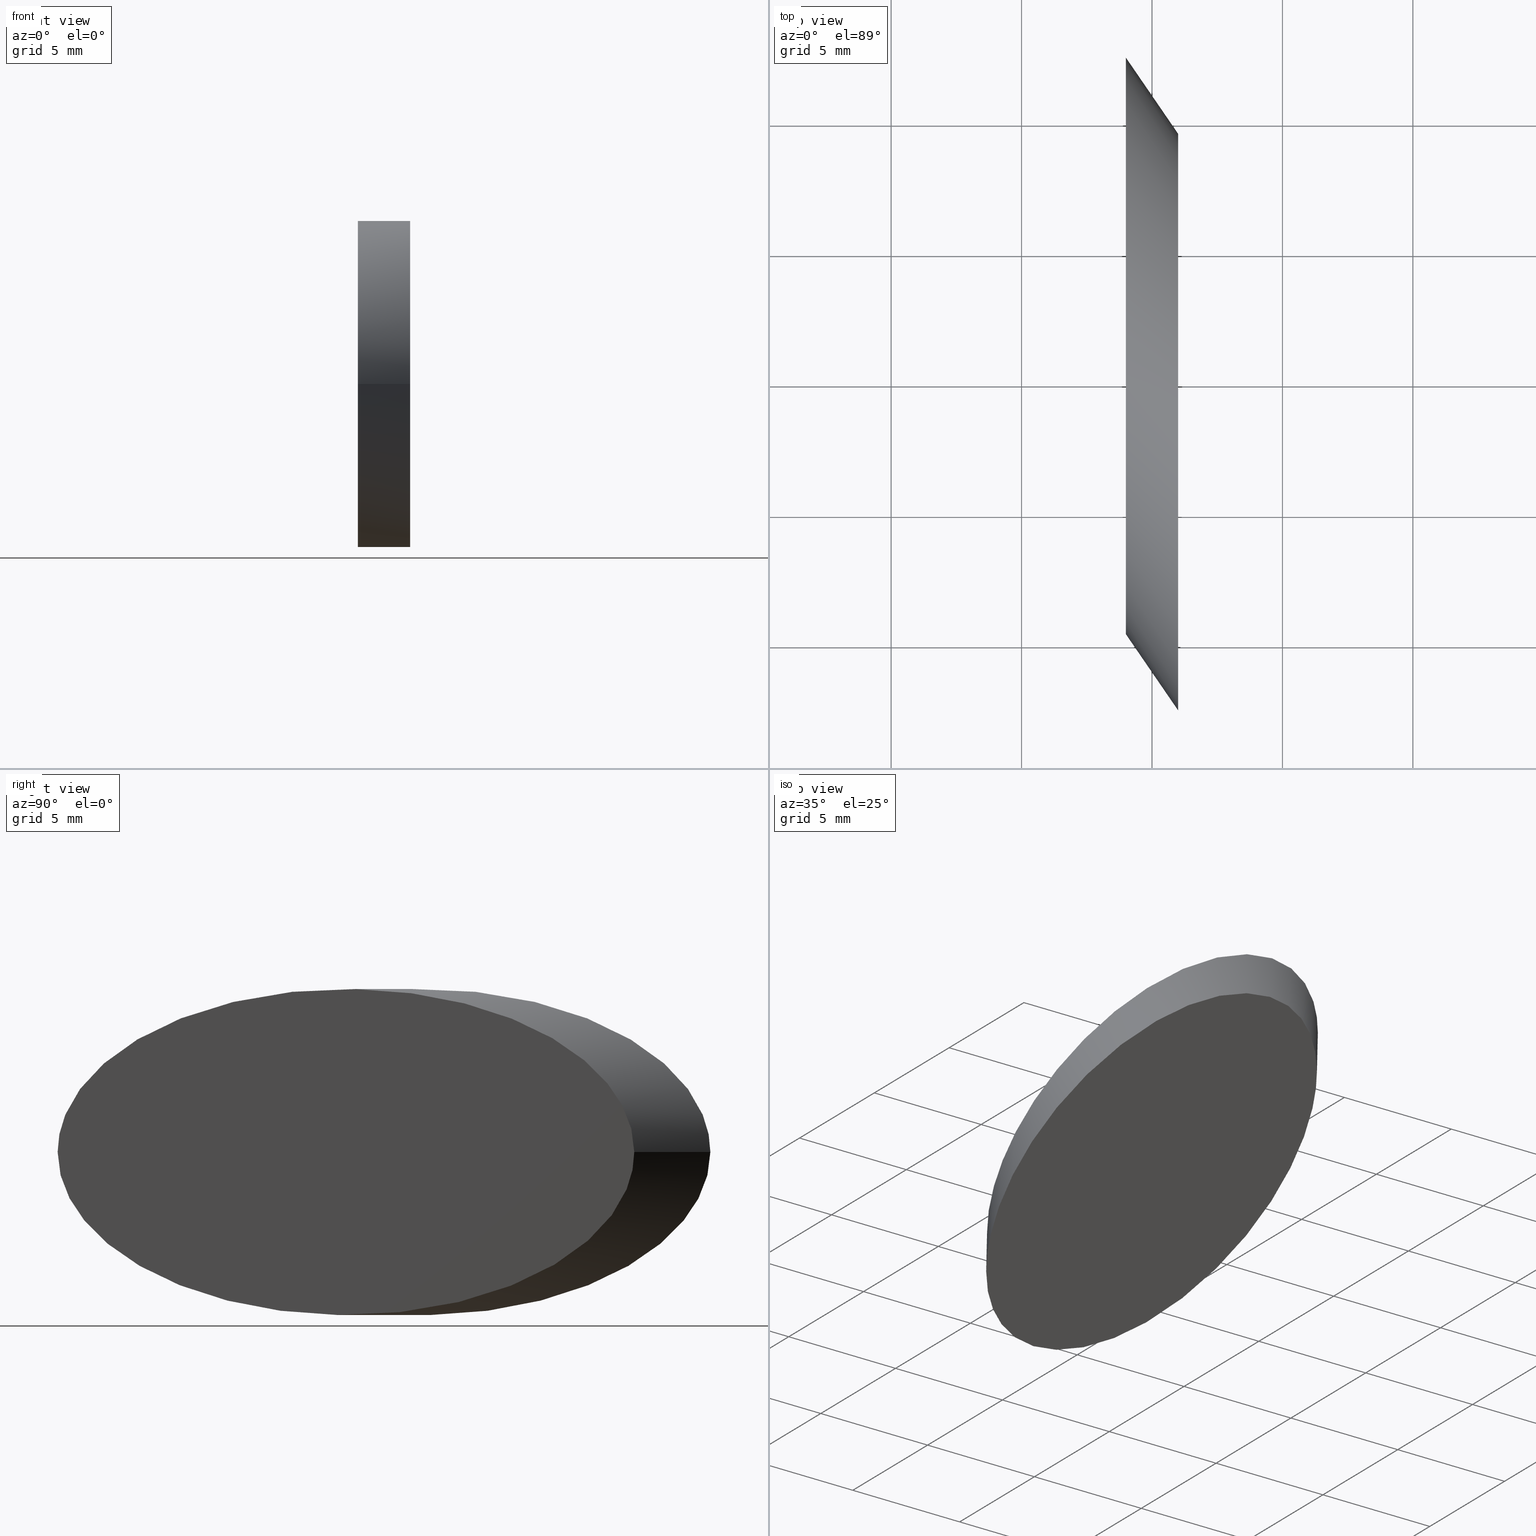
[diagram: canonical four-view strip — front | top / right | iso, engineering-drawing reading convention]
A machine part, canonical four-view strip (front | top / right | iso — engineering-drawing reading convention). The complete STEP part file that produces these views, byte-faithful:
ISO-10303-21;
HEADER;
FILE_DESCRIPTION (( 'STEP AP203' ),
    '1' );
FILE_NAME ('Web Model 65824.STEP',
    '2017-01-31T19:19:03',
    ( '' ),
    ( '' ),
    'SwSTEP 2.0',
    'SolidWorks 2016',
    '' );
FILE_SCHEMA (( 'CONFIG_CONTROL_DESIGN' ));
ENDSEC;

DATA;
#1 = LOCAL_TIME ( 14, 19, 3.000000000000000000, #88 ) ;
#2 = PERSON_AND_ORGANIZATION ( #24, #112 ) ;
#3 = CC_DESIGN_PERSON_AND_ORGANIZATION_ASSIGNMENT ( #100, #40, ( #38 ) ) ;
#4 = CARTESIAN_POINT ( 'NONE',  ( -0.9999999999999991100, 12.51184537694692600, -6.250000000000000000 ) ) ;
#5 = ORIENTED_EDGE ( 'NONE', *, *, #69, .T. ) ;
#6 = CARTESIAN_POINT ( 'NONE',  ( -1.000000000000004400, -9.594561307427634100, 0.0000000000000000000 ) ) ;
#7 = AXIS2_PLACEMENT_3D ( 'NONE', #52, #93, #16 ) ;
#8 = PERSON_AND_ORGANIZATION_ROLE ( 'creator' ) ;
#9 = APPROVAL_STATUS ( 'not_yet_approved' ) ;
#10 = AXIS2_PLACEMENT_3D ( 'NONE', #80, #146, #136 ) ;
#11 = SECURITY_CLASSIFICATION_LEVEL ( 'unclassified' ) ;
#12 = ADVANCED_FACE ( 'NONE', ( #172 ), #92, .T. ) ;
#13 = ADVANCED_BREP_SHAPE_REPRESENTATION ( 'Web Model 65824', ( #101, #10 ), #153 ) ;
#14 = ORIENTED_EDGE ( 'NONE', *, *, #41, .T. ) ;
#15 = EDGE_LOOP ( 'NONE', ( #119, #165 ) ) ;
#16 = DIRECTION ( 'NONE',  ( -0.8247846741814953700, -0.5654469393633009300, 0.0000000000000000000 ) ) ;
#17 = VERTEX_POINT ( 'NONE', #72 ) ;
#18 = CARTESIAN_POINT ( 'NONE',  ( 1.000000000000007800, -12.51184537694693300, 0.0000000000000000000 ) ) ;
#19 = APPROVAL_DATE_TIME ( #138, #45 ) ;
#20 = CARTESIAN_POINT ( 'NONE',  ( -1.000000000000004400, 12.51184537694691900, 7.654042494670957600E-016 ) ) ;
#21 = PERSON_AND_ORGANIZATION ( #24, #112 ) ;
#22 = CARTESIAN_POINT ( 'NONE',  ( -1.000000000000004400, 12.51184537694692300, -12.50000000000000000 ) ) ;
#23 =( NAMED_UNIT ( * ) SI_UNIT ( $, .STERADIAN. ) SOLID_ANGLE_UNIT ( ) );
#24 = PERSON ( 'UNSPECIFIED', 'UNSPECIFIED', 'UNSPECIFIED', ('UNSPECIFIED'), ('UNSPECIFIED'), ('UNSPECIFIED') ) ;
#25 = CC_DESIGN_DATE_AND_TIME_ASSIGNMENT ( #102, #97, ( #38 ) ) ;
#26 = LOCAL_TIME ( 14, 19, 3.000000000000000000, #108 ) ;
#27 = ORIENTED_EDGE ( 'NONE', *, *, #64, .T. ) ;
#28 = CARTESIAN_POINT ( 'NONE',  ( 0.9999999999999967800, 9.594561307427650100, -6.250000000000000000 ) ) ;
#29 = CARTESIAN_POINT ( 'NONE',  ( -1.000000000000004400, -9.594561307427637700, 12.50000000000000000 ) ) ;
#30 = CARTESIAN_POINT ( 'NONE',  ( 1.000000000000004400, 9.594561307427639500, 7.654042494670957600E-016 ) ) ;
#31 = CC_DESIGN_PERSON_AND_ORGANIZATION_ASSIGNMENT ( #127, #86, ( #83 ) ) ;
#32 = APPROVAL_PERSON_ORGANIZATION ( #73, #140, #147 ) ;
#33 = AXIS2_PLACEMENT_3D ( 'NONE', #4, #65, #115 ) ;
#34 = FACE_OUTER_BOUND ( 'NONE', #85, .T. ) ;
#35 = PRODUCT_DEFINITION ( 'UNKNOWN', '', #104, #167 ) ;
#36 = DIRECTION ( 'NONE',  ( 1.000000000000000000, 1.863698752252225800E-016, 0.0000000000000000000 ) ) ;
#37 = CARTESIAN_POINT ( 'NONE',  ( 1.000000000000002400, 9.594561307427635900, 12.50000000000000000 ) ) ;
#38 = SECURITY_CLASSIFICATION ( '', '', #11 ) ;
#39 = APPROVAL_STATUS ( 'not_yet_approved' ) ;
#40 = PERSON_AND_ORGANIZATION_ROLE ( 'classification_officer' ) ;
#41 = EDGE_CURVE ( 'NONE', #17, #74, #95, .T. ) ;
#42 = CLOSED_SHELL ( 'NONE', ( #103, #43, #47, #12 ) ) ;
#43 = ADVANCED_FACE ( 'NONE', ( #55 ), #48, .T. ) ;
#44 = ORIENTED_EDGE ( 'NONE', *, *, #81, .F. ) ;
#45 = APPROVAL ( #39, 'UNSPECIFIED' ) ;
#46 = PRODUCT_DEFINITION_SHAPE ( 'NONE', 'NONE',  #35 ) ;
#47 = ADVANCED_FACE ( 'NONE', ( #78 ), #171, .T. ) ;
#48 = CYLINDRICAL_SURFACE ( 'NONE', #7, 6.250000000000001800 ) ;
#49 = APPROVAL_DATE_TIME ( #62, #140 ) ;
#50 = CARTESIAN_POINT ( 'NONE',  ( -1.000000000000004400, -9.594561307427632400, -12.50000000000000000 ) ) ;
#51 = ORIENTED_EDGE ( 'NONE', *, *, #126, .F. ) ;
#52 = CARTESIAN_POINT ( 'NONE',  ( 28.27234696816502400, -41.23923370907478200, 0.0000000000000000000 ) ) ;
#53 = SHAPE_DEFINITION_REPRESENTATION ( #46, #13 ) ;
#54 = DIRECTION ( 'NONE',  ( -0.5654469393633004800, 0.8247846741814957000, -0.0000000000000000000 ) ) ;
#55 = FACE_OUTER_BOUND ( 'NONE', #175, .T. ) ;
#56 = MECHANICAL_CONTEXT ( 'NONE', #99, 'mechanical' ) ;
#57 = CALENDAR_DATE ( 2017, 31, 1 ) ;
#58 = PERSON_AND_ORGANIZATION_ROLE ( 'creator' ) ;
#59 = APPLICATION_PROTOCOL_DEFINITION ( 'international standard', 'config_control_design', 1994, #87 ) ;
#60 = CC_DESIGN_APPROVAL ( #45, ( #35 ) ) ;
#61 = VERTEX_POINT ( 'NONE', #18 ) ;
#62 = DATE_AND_TIME ( #89, #91 ) ;
#63 = PERSON_AND_ORGANIZATION ( #24, #112 ) ;
#64 = EDGE_CURVE ( 'NONE', #61, #137, #123, .T. ) ;
#65 = DIRECTION ( 'NONE',  ( -1.000000000000000000, 0.0000000000000000000, -0.0000000000000000000 ) ) ;
#66 = CC_DESIGN_DATE_AND_TIME_ASSIGNMENT ( #151, #174, ( #35 ) ) ;
#67 = DATE_AND_TIME ( #125, #163 ) ;
#68 = CARTESIAN_POINT ( 'NONE',  ( 1.000000000000006200, -12.51184537694692800, -12.50000000000000000 ) ) ;
#69 = EDGE_CURVE ( 'NONE', #137, #74, #90, .T. ) ;
#70 = APPROVAL_PERSON_ORGANIZATION ( #105, #45, #162 ) ;
#71 =( BOUNDED_CURVE ( )  B_SPLINE_CURVE ( 3, ( #155, #68, #145, #96 ),
 .UNSPECIFIED., .F., .F. ) 
 B_SPLINE_CURVE_WITH_KNOTS ( ( 4, 4 ),
 ( 3.141592653589793100, 6.283185307179586200 ),
 .UNSPECIFIED. ) 
 CURVE ( )  GEOMETRIC_REPRESENTATION_ITEM ( )  RATIONAL_B_SPLINE_CURVE ( ( 1.000000000000000000, 0.3333333333333333700, 0.3333333333333333700, 1.000000000000000000 ) ) 
 REPRESENTATION_ITEM ( '' )  );
#72 = CARTESIAN_POINT ( 'NONE',  ( 1.000000000000004400, 9.594561307427639500, 7.654042494670957600E-016 ) ) ;
#73 = PERSON_AND_ORGANIZATION ( #24, #112 ) ;
#74 = VERTEX_POINT ( 'NONE', #20 ) ;
#75 = CALENDAR_DATE ( 2017, 31, 1 ) ;
#76 = EDGE_CURVE ( 'NONE', #74, #137, #122, .T. ) ;
#77 =( NAMED_UNIT ( * ) PLANE_ANGLE_UNIT ( ) SI_UNIT ( $, .RADIAN. ) );
#78 = FACE_OUTER_BOUND ( 'NONE', #15, .T. ) ;
#79 = APPROVAL ( #160, 'UNSPECIFIED' ) ;
#80 = CARTESIAN_POINT ( 'NONE',  ( 0.0000000000000000000, 0.0000000000000000000, 0.0000000000000000000 ) ) ;
#81 = EDGE_CURVE ( 'NONE', #17, #61, #107, .T. ) ;
#82 = CARTESIAN_POINT ( 'NONE',  ( 28.27234696816502400, -41.23923370907478200, 0.0000000000000000000 ) ) ;
#83 = PRODUCT ( 'Web Model 65824', 'Web Model 65824', '', ( #56 ) ) ;
#84 = DIRECTION ( 'NONE',  ( -0.8247846741814953700, -0.5654469393633009300, 0.0000000000000000000 ) ) ;
#85 = EDGE_LOOP ( 'NONE', ( #44, #14, #130, #173 ) ) ;
#86 = PERSON_AND_ORGANIZATION_ROLE ( 'design_owner' ) ;
#87 = APPLICATION_CONTEXT ( 'configuration controlled 3d designs of mechanical parts and assemblies' ) ;
#88 = COORDINATED_UNIVERSAL_TIME_OFFSET ( 5, 0, .BEHIND. ) ;
#89 = CALENDAR_DATE ( 2017, 31, 1 ) ;
#90 =( BOUNDED_CURVE ( )  B_SPLINE_CURVE ( 3, ( #169, #29, #143, #113 ),
 .UNSPECIFIED., .F., .F. ) 
 B_SPLINE_CURVE_WITH_KNOTS ( ( 4, 4 ),
 ( 3.141592653589793100, 6.283185307179586200 ),
 .UNSPECIFIED. ) 
 CURVE ( )  GEOMETRIC_REPRESENTATION_ITEM ( )  RATIONAL_B_SPLINE_CURVE ( ( 1.000000000000000000, 0.3333333333333333700, 0.3333333333333333700, 1.000000000000000000 ) ) 
 REPRESENTATION_ITEM ( '' )  );
#91 = LOCAL_TIME ( 14, 19, 3.000000000000000000, #154 ) ;
#92 = PLANE ( 'NONE',  #33 ) ;
#93 = DIRECTION ( 'NONE',  ( -0.5654469393633004800, 0.8247846741814957000, -0.0000000000000000000 ) ) ;
#94 = CARTESIAN_POINT ( 'NONE',  ( 23.11744275453067500, -44.77327708009541900, 0.0000000000000000000 ) ) ;
#95 = LINE ( 'NONE', #111, #170 ) ;
#96 = CARTESIAN_POINT ( 'NONE',  ( 1.000000000000004400, 9.594561307427639500, 7.654042494670957600E-016 ) ) ;
#97 = DATE_TIME_ROLE ( 'classification_date' ) ;
#98 = AXIS2_PLACEMENT_3D ( 'NONE', #82, #54, #84 ) ;
#99 = APPLICATION_CONTEXT ( 'configuration controlled 3d designs of mechanical parts and assemblies' ) ;
#100 = PERSON_AND_ORGANIZATION ( #24, #112 ) ;
#101 = MANIFOLD_SOLID_BREP ( 'Cut-Extrude1', #42 ) ;
#102 = DATE_AND_TIME ( #117, #26 ) ;
#103 = ADVANCED_FACE ( 'NONE', ( #34 ), #106, .T. ) ;
#104 = PRODUCT_DEFINITION_FORMATION_WITH_SPECIFIED_SOURCE ( 'ANY', '', #83, .NOT_KNOWN. ) ;
#105 = PERSON_AND_ORGANIZATION ( #24, #112 ) ;
#106 = CYLINDRICAL_SURFACE ( 'NONE', #98, 6.250000000000001800 ) ;
#107 =( BOUNDED_CURVE ( )  B_SPLINE_CURVE ( 3, ( #30, #37, #158, #157 ),
 .UNSPECIFIED., .F., .T. ) 
 B_SPLINE_CURVE_WITH_KNOTS ( ( 4, 4 ),
 ( 1.224646799147353000E-016, 3.141592653589793100 ),
 .UNSPECIFIED. ) 
 CURVE ( )  GEOMETRIC_REPRESENTATION_ITEM ( )  RATIONAL_B_SPLINE_CURVE ( ( 1.000000000000000000, 0.3333333333333333700, 0.3333333333333333700, 1.000000000000000000 ) ) 
 REPRESENTATION_ITEM ( '' )  );
#108 = COORDINATED_UNIVERSAL_TIME_OFFSET ( 5, 0, .BEHIND. ) ;
#109 = VECTOR ( 'NONE', #144, 1000.000000000000000 ) ;
#110 = LOCAL_TIME ( 14, 19, 3.000000000000000000, #121 ) ;
#111 = CARTESIAN_POINT ( 'NONE',  ( 33.42725118179937000, -37.70519033805415200, 7.654042494670957600E-016 ) ) ;
#112 = ORGANIZATION ( 'UNSPECIFIED', 'UNSPECIFIED', '' ) ;
#113 = CARTESIAN_POINT ( 'NONE',  ( -1.000000000000004400, 12.51184537694691900, 7.654042494670957600E-016 ) ) ;
#114 = APPROVAL_DATE_TIME ( #67, #79 ) ;
#115 = DIRECTION ( 'NONE',  ( -0.0000000000000000000, 0.0000000000000000000, 1.000000000000000000 ) ) ;
#116 = APPLICATION_PROTOCOL_DEFINITION ( 'international standard', 'config_control_design', 1994, #99 ) ;
#117 = CALENDAR_DATE ( 2017, 31, 1 ) ;
#118 = APPROVAL_ROLE ( '' ) ;
#119 = ORIENTED_EDGE ( 'NONE', *, *, #126, .T. ) ;
#120 = CC_DESIGN_SECURITY_CLASSIFICATION ( #38, ( #104 ) ) ;
#121 = COORDINATED_UNIVERSAL_TIME_OFFSET ( 5, 0, .BEHIND. ) ;
#122 =( BOUNDED_CURVE ( )  B_SPLINE_CURVE ( 3, ( #133, #22, #50, #168 ),
 .UNSPECIFIED., .F., .T. ) 
 B_SPLINE_CURVE_WITH_KNOTS ( ( 4, 4 ),
 ( 0.0000000000000000000, 3.141592653589793100 ),
 .UNSPECIFIED. ) 
 CURVE ( )  GEOMETRIC_REPRESENTATION_ITEM ( )  RATIONAL_B_SPLINE_CURVE ( ( 1.000000000000000000, 0.3333333333333333700, 0.3333333333333333700, 1.000000000000000000 ) ) 
 REPRESENTATION_ITEM ( '' )  );
#123 = LINE ( 'NONE', #94, #109 ) ;
#124 = EDGE_LOOP ( 'NONE', ( #5, #152 ) ) ;
#125 = CALENDAR_DATE ( 2017, 31, 1 ) ;
#126 = EDGE_CURVE ( 'NONE', #61, #17, #71, .T. ) ;
#127 = PERSON_AND_ORGANIZATION ( #24, #112 ) ;
#128 = DIRECTION ( 'NONE',  ( -1.863698752252225800E-016, 1.000000000000000000, 0.0000000000000000000 ) ) ;
#129 = CC_DESIGN_PERSON_AND_ORGANIZATION_ASSIGNMENT ( #2, #8, ( #35 ) ) ;
#130 = ORIENTED_EDGE ( 'NONE', *, *, #69, .F. ) ;
#131 = UNCERTAINTY_MEASURE_WITH_UNIT (LENGTH_MEASURE( 1.000000000000000100E-005 ), #161, 'distance_accuracy_value', 'NONE');
#132 = AXIS2_PLACEMENT_3D ( 'NONE', #28, #36, #128 ) ;
#133 = CARTESIAN_POINT ( 'NONE',  ( -1.000000000000004400, 12.51184537694691900, 7.654042494670957600E-016 ) ) ;
#134 = PRODUCT_RELATED_PRODUCT_CATEGORY ( 'detail', '', ( #83 ) ) ;
#135 = APPROVAL_PERSON_ORGANIZATION ( #21, #79, #118 ) ;
#136 = DIRECTION ( 'NONE',  ( 1.000000000000000000, 0.0000000000000000000, 0.0000000000000000000 ) ) ;
#137 = VERTEX_POINT ( 'NONE', #6 ) ;
#138 = DATE_AND_TIME ( #57, #1 ) ;
#139 = ORIENTED_EDGE ( 'NONE', *, *, #76, .F. ) ;
#140 = APPROVAL ( #9, 'UNSPECIFIED' ) ;
#141 = COORDINATED_UNIVERSAL_TIME_OFFSET ( 5, 0, .BEHIND. ) ;
#142 = PERSON_AND_ORGANIZATION ( #24, #112 ) ;
#143 = CARTESIAN_POINT ( 'NONE',  ( -1.000000000000004400, 12.51184537694692300, 12.50000000000000000 ) ) ;
#144 = DIRECTION ( 'NONE',  ( -0.5654469393633004800, 0.8247846741814957000, -0.0000000000000000000 ) ) ;
#145 = CARTESIAN_POINT ( 'NONE',  ( 1.000000000000002400, 9.594561307427637700, -12.50000000000000000 ) ) ;
#146 = DIRECTION ( 'NONE',  ( 0.0000000000000000000, 0.0000000000000000000, 1.000000000000000000 ) ) ;
#147 = APPROVAL_ROLE ( '' ) ;
#148 = ORIENTED_EDGE ( 'NONE', *, *, #41, .F. ) ;
#149 = PERSON_AND_ORGANIZATION_ROLE ( 'design_supplier' ) ;
#150 = CC_DESIGN_APPROVAL ( #140, ( #104 ) ) ;
#151 = DATE_AND_TIME ( #75, #110 ) ;
#152 = ORIENTED_EDGE ( 'NONE', *, *, #76, .T. ) ;
#153 =( GEOMETRIC_REPRESENTATION_CONTEXT ( 3 ) GLOBAL_UNCERTAINTY_ASSIGNED_CONTEXT ( ( #131 ) ) GLOBAL_UNIT_ASSIGNED_CONTEXT ( ( #161, #77, #23 ) ) REPRESENTATION_CONTEXT ( 'NONE', 'WORKASPACE' ) );
#154 = COORDINATED_UNIVERSAL_TIME_OFFSET ( 5, 0, .BEHIND. ) ;
#155 = CARTESIAN_POINT ( 'NONE',  ( 1.000000000000007800, -12.51184537694693300, 0.0000000000000000000 ) ) ;
#156 = CC_DESIGN_PERSON_AND_ORGANIZATION_ASSIGNMENT ( #63, #58, ( #104 ) ) ;
#157 = CARTESIAN_POINT ( 'NONE',  ( 1.000000000000007800, -12.51184537694693300, 0.0000000000000000000 ) ) ;
#158 = CARTESIAN_POINT ( 'NONE',  ( 1.000000000000006200, -12.51184537694692300, 12.50000000000000000 ) ) ;
#159 = DIRECTION ( 'NONE',  ( -0.5654469393633004800, 0.8247846741814957000, -0.0000000000000000000 ) ) ;
#160 = APPROVAL_STATUS ( 'not_yet_approved' ) ;
#161 =( LENGTH_UNIT ( ) NAMED_UNIT ( * ) SI_UNIT ( .MILLI., .METRE. ) );
#162 = APPROVAL_ROLE ( '' ) ;
#163 = LOCAL_TIME ( 14, 19, 3.000000000000000000, #141 ) ;
#164 = CC_DESIGN_APPROVAL ( #79, ( #38 ) ) ;
#165 = ORIENTED_EDGE ( 'NONE', *, *, #81, .T. ) ;
#166 = CC_DESIGN_PERSON_AND_ORGANIZATION_ASSIGNMENT ( #142, #149, ( #104 ) ) ;
#167 = DESIGN_CONTEXT ( 'detailed design', #87, 'design' ) ;
#168 = CARTESIAN_POINT ( 'NONE',  ( -1.000000000000004400, -9.594561307427634100, 0.0000000000000000000 ) ) ;
#169 = CARTESIAN_POINT ( 'NONE',  ( -1.000000000000004400, -9.594561307427634100, 0.0000000000000000000 ) ) ;
#170 = VECTOR ( 'NONE', #159, 1000.000000000000000 ) ;
#171 = PLANE ( 'NONE',  #132 ) ;
#172 = FACE_OUTER_BOUND ( 'NONE', #124, .T. ) ;
#173 = ORIENTED_EDGE ( 'NONE', *, *, #64, .F. ) ;
#174 = DATE_TIME_ROLE ( 'creation_date' ) ;
#175 = EDGE_LOOP ( 'NONE', ( #148, #51, #27, #139 ) ) ;
ENDSEC;
END-ISO-10303-21;
